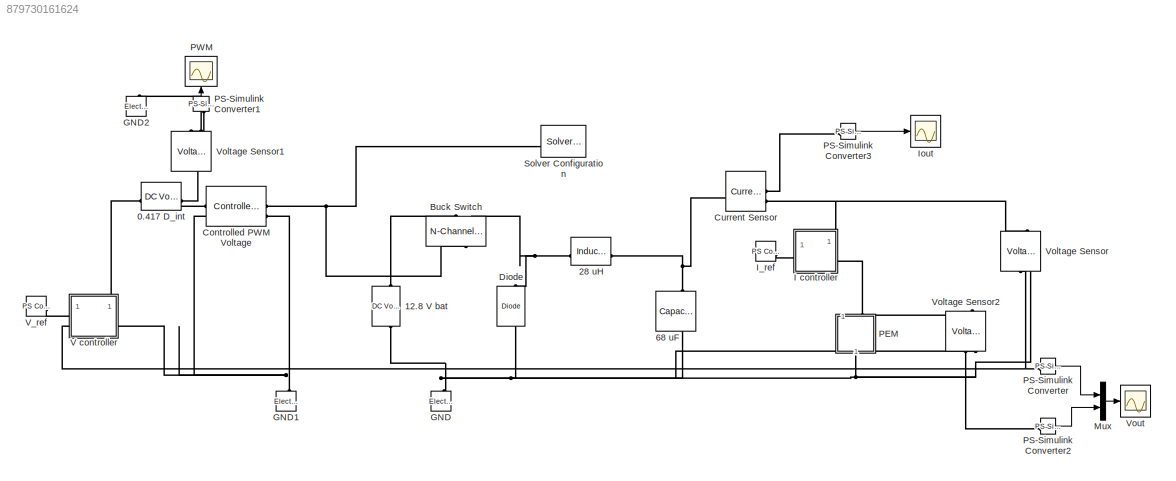
MODEL slx_879730161624
KIND model
CONFIG AbsTol = auto
CONFIG EnableMultiTasking = off
CONFIG FixedStep = auto
CONFIG MaxStep = auto
CONFIG MinStep = auto
CONFIG RelTol = 1e-3
CONFIG SampleTimeConstraint = Unconstrained
CONFIG SolverName = VariableStepAuto
CONFIG StartTime = 0.0
CONFIG StopTime = 2e-3
BLOCK [Reference] 0.417 D_int  REF=fl_lib/Electrical/Electrical Sources/DC Voltage Source
  SourceBlock = fl_lib/Electrical/Electrical Sources/DC Voltage Source
  SourceType = DC Voltage Source
BLOCK [Reference] 12.8 V bat  REF=fl_lib/Electrical/Electrical Sources/DC Voltage Source
  NameLocation = right
  SourceBlock = fl_lib/Electrical/Electrical Sources/DC Voltage Source
  SourceType = DC Voltage Source
BLOCK [Reference] 28 uH  REF=ee_lib/Passive/Inductor
  SourceBlock = ee_lib/Passive/Inductor
  SourceType = Inductor
BLOCK [Reference] 68 uF  REF=ee_lib/Passive/Capacitor
  NameLocation = left
  SourceBlock = ee_lib/Passive/Capacitor
  SourceType = Capacitor
BLOCK [Reference] Buck Switch  REF=ee_lib/Semiconductors &
Converters/N-Channel MOSFET
  NameLocation = right
  SourceBlock = ee_lib/Semiconductors &\nConverters/N-Channel MOSFET
  SourceType = N-Channel MOSFET
BLOCK [Reference] Controlled PWM Voltage  REF=ee_lib/Integrated Circuits/Controlled PWM
Voltage
  SourceBlock = ee_lib/Integrated Circuits/Controlled PWM\nVoltage
  SourceType = Controlled PWM\nVoltage
BLOCK [Reference] Current Sensor  REF=fl_lib/Electrical/Electrical Sensors/Current Sensor
  SourceBlock = fl_lib/Electrical/Electrical Sensors/Current Sensor
  SourceType = Current Sensor
BLOCK [Reference] Diode  REF=ee_lib/Semiconductors &
Converters/Diode
  NameLocation = right
  SourceBlock = ee_lib/Semiconductors &\nConverters/Diode
  SourceType = Diode
BLOCK [Reference] GND  REF=fl_lib/Electrical/Electrical Elements/Electrical Reference
  NameLocation = right
  SourceBlock = fl_lib/Electrical/Electrical Elements/Electrical Reference
  SourceType = Electrical Reference
BLOCK [Reference] GND1  REF=fl_lib/Electrical/Electrical Elements/Electrical Reference
  NameLocation = right
  SourceBlock = fl_lib/Electrical/Electrical Elements/Electrical Reference
  SourceType = Electrical Reference
BLOCK [Reference] GND2  REF=fl_lib/Electrical/Electrical Elements/Electrical Reference
  NameLocation = right
  SourceBlock = fl_lib/Electrical/Electrical Elements/Electrical Reference
  SourceType = Electrical Reference
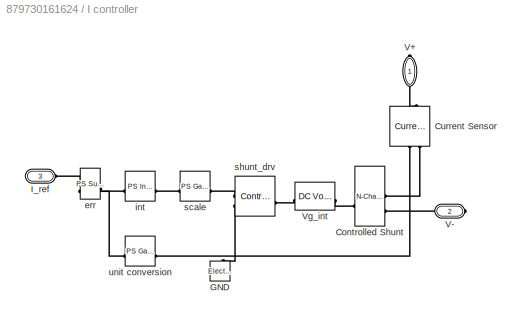
BLOCK [SubSystem] I controller
BLOCK [Reference] I controller/Controlled Shunt  REF=ee_lib/Semiconductors &
Converters/N-Channel MOSFET
  SourceBlock = ee_lib/Semiconductors &\nConverters/N-Channel MOSFET
  SourceType = N-Channel MOSFET
BLOCK [Reference] I controller/Current Sensor  REF=fl_lib/Electrical/Electrical Sensors/Current Sensor
  NameLocation = left
  SourceBlock = fl_lib/Electrical/Electrical Sensors/Current Sensor
  SourceType = Current Sensor
BLOCK [Reference] I controller/GND  REF=fl_lib/Electrical/Electrical Elements/Electrical Reference
  NameLocation = right
  SourceBlock = fl_lib/Electrical/Electrical Elements/Electrical Reference
  SourceType = Electrical Reference
BLOCK [PMIOPort] I controller/I_ref
  NameLocation = top
  Port = 3
  Side = Left
BLOCK [PMIOPort] I controller/V+
  NameLocation = right
  Side = Right
BLOCK [PMIOPort] I controller/V-
  Port = 2
  Side = Right
BLOCK [Reference] I controller/Vg_int  REF=fl_lib/Electrical/Electrical Sources/DC Voltage Source
  SourceBlock = fl_lib/Electrical/Electrical Sources/DC Voltage Source
  SourceType = DC Voltage Source
BLOCK [Reference] I controller/err  REF=fl_lib/Physical Signals/Functions/PS Subtract
  SourceBlock = fl_lib/Physical Signals/Functions/PS Subtract
  SourceType = PS Subtract
BLOCK [Reference] I controller/int  REF=fl_lib/Physical Signals/Linear Operators/PS Integrator
  SourceBlock = fl_lib/Physical Signals/Linear Operators/PS Integrator
  SourceType = PS Integrator
BLOCK [Reference] I controller/scale  REF=fl_lib/Physical Signals/Functions/PS Gain
  SourceBlock = fl_lib/Physical Signals/Functions/PS Gain
  SourceType = PS Gain
BLOCK [Reference] I controller/shunt_drv  REF=fl_lib/Electrical/Electrical Sources/Controlled Voltage
Source
  SourceBlock = fl_lib/Electrical/Electrical Sources/Controlled Voltage\nSource
  SourceType = Controlled Voltage\nSource
BLOCK [Reference] I controller/unit conversion  REF=fl_lib/Physical Signals/Functions/PS Gain
  NameLocation = top
  SourceBlock = fl_lib/Physical Signals/Functions/PS Gain
  SourceType = PS Gain
BLOCK [Reference] I_ref  REF=fl_lib/Physical Signals/Sources/PS Constant
  SourceBlock = fl_lib/Physical Signals/Sources/PS Constant
  SourceType = PS Constant
BLOCK [Scope] Iout
  Floating = off
  NumInputPorts = 1
  ScopeSpecificationString = Simulink.scopes.TimeScopeBlockCfg('CurrentConfiguration', extmgr.ConfigurationSet(extmgr.Configuration('Core','General UI',true),extmgr.Configuration('Core','Source UI',true),extmgr.Configuration('Sources','WiredSimulink',true,'DataLoggingVariableName','ScopeData2'),extmgr.Configuration('Visuals','Time Domain',true,'SerializedDisplays',{struct('MinYLimReal','-0.57105','MaxYLimReal','6.29261','YLab...<+1596ch>
BLOCK [Mux] Mux
  DisplayOption = bar
  Inputs = 2
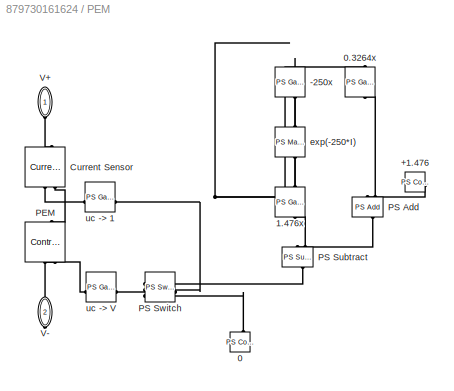
BLOCK [SubSystem] PEM
  NameLocation = left
BLOCK [Reference] PEM/+1.476  REF=fl_lib/Physical Signals/Sources/PS Constant
  NameLocation = top
  SourceBlock = fl_lib/Physical Signals/Sources/PS Constant
  SourceType = PS Constant
BLOCK [Reference] PEM/-250x  REF=fl_lib/Physical Signals/Functions/PS Gain
  NameLocation = left
  SourceBlock = fl_lib/Physical Signals/Functions/PS Gain
  SourceType = PS Gain
BLOCK [Reference] PEM/0  REF=fl_lib/Physical Signals/Sources/PS Constant
  NameLocation = right
  SourceBlock = fl_lib/Physical Signals/Sources/PS Constant
  SourceType = PS Constant
BLOCK [Reference] PEM/0.3264x  REF=fl_lib/Physical Signals/Functions/PS Gain
  NameLocation = left
  SourceBlock = fl_lib/Physical Signals/Functions/PS Gain
  SourceType = PS Gain
BLOCK [Reference] PEM/1.476x  REF=fl_lib/Physical Signals/Functions/PS Gain
  NameLocation = left
  SourceBlock = fl_lib/Physical Signals/Functions/PS Gain
  SourceType = PS Gain
BLOCK [Reference] PEM/Current Sensor  REF=fl_lib/Electrical/Electrical Sensors/Current Sensor
  NameLocation = left
  SourceBlock = fl_lib/Electrical/Electrical Sensors/Current Sensor
  SourceType = Current Sensor
BLOCK [Reference] PEM/PEM  REF=fl_lib/Electrical/Electrical Sources/Controlled Voltage
Source
  NameLocation = right
  SourceBlock = fl_lib/Electrical/Electrical Sources/Controlled Voltage\nSource
  SourceType = Controlled Voltage\nSource
BLOCK [Reference] PEM/PS Add  REF=fl_lib/Physical Signals/Functions/PS Add
  NameLocation = left
  SourceBlock = fl_lib/Physical Signals/Functions/PS Add
  SourceType = PS Add
BLOCK [Reference] PEM/PS Subtract  REF=fl_lib/Physical Signals/Functions/PS Subtract
  NameLocation = left
  SourceBlock = fl_lib/Physical Signals/Functions/PS Subtract
  SourceType = PS Subtract
BLOCK [Reference] PEM/PS Switch  REF=fl_lib/Physical Signals/Nonlinear Operators/PS Switch
  NameLocation = top
  SourceBlock = fl_lib/Physical Signals/Nonlinear Operators/PS Switch
  SourceType = PS Switch
BLOCK [PMIOPort] PEM/V+
  NameLocation = left
  Side = Left
BLOCK [PMIOPort] PEM/V-
  NameLocation = left
  Port = 2
  Side = Right
BLOCK [Reference] PEM/exp(-250*I)  REF=fl_lib/Physical Signals/Functions/PS Math Function
  NameLocation = left
  SourceBlock = fl_lib/Physical Signals/Functions/PS Math Function
  SourceType = PS Math Function
BLOCK [Reference] PEM/uc -> 1  REF=fl_lib/Physical Signals/Functions/PS Gain
  SourceBlock = fl_lib/Physical Signals/Functions/PS Gain
  SourceType = PS Gain
BLOCK [Reference] PEM/uc -> V  REF=fl_lib/Physical Signals/Functions/PS Gain
  NameLocation = top
  SourceBlock = fl_lib/Physical Signals/Functions/PS Gain
  SourceType = PS Gain
BLOCK [Reference] PS-Simulink Converter  REF=nesl_utility/PS-Simulink
Converter
  SourceBlock = nesl_utility/PS-Simulink\nConverter
  SourceType = PS-Simulink\nConverter
BLOCK [Reference] PS-Simulink Converter1  REF=nesl_utility/PS-Simulink
Converter
  NameLocation = right
  SourceBlock = nesl_utility/PS-Simulink\nConverter
  SourceType = PS-Simulink\nConverter
BLOCK [Reference] PS-Simulink Converter2  REF=nesl_utility/PS-Simulink
Converter
  SourceBlock = nesl_utility/PS-Simulink\nConverter
  SourceType = PS-Simulink\nConverter
BLOCK [Reference] PS-Simulink Converter3  REF=nesl_utility/PS-Simulink
Converter
  SourceBlock = nesl_utility/PS-Simulink\nConverter
  SourceType = PS-Simulink\nConverter
BLOCK [Scope] PWM
  Floating = off
  NameLocation = right
  NumInputPorts = 1
  ScopeSpecificationString = Simulink.scopes.TimeScopeBlockCfg('CurrentConfiguration', extmgr.ConfigurationSet(extmgr.Configuration('Core','General UI',true),extmgr.Configuration('Core','Source UI',true),extmgr.Configuration('Sources','WiredSimulink',true,'DataLoggingVariableName','ScopeData2'),extmgr.Configuration('Visuals','Time Domain',true,'SerializedDisplays',{struct('MinYLimReal','0.40264','MaxYLimReal','0.54621','YLabe...<+1568ch>
BLOCK [Reference] Solver Configuration  REF=nesl_utility/Solver
Configuration
  NameLocation = top
  SourceBlock = nesl_utility/Solver\nConfiguration
  SourceType = Solver\nConfiguration
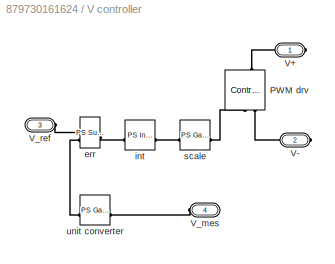
BLOCK [SubSystem] V controller
BLOCK [Reference] V controller/PWM drv  REF=fl_lib/Electrical/Electrical Sources/Controlled Voltage
Source
  NameLocation = right
  SourceBlock = fl_lib/Electrical/Electrical Sources/Controlled Voltage\nSource
  SourceType = Controlled Voltage\nSource
BLOCK [PMIOPort] V controller/V+
  Side = Right
BLOCK [PMIOPort] V controller/V-
  Port = 2
  Side = Right
BLOCK [PMIOPort] V controller/V_mes
  Port = 4
  Side = Left
BLOCK [PMIOPort] V controller/V_ref
  NameLocation = top
  Port = 3
  Side = Left
BLOCK [Reference] V controller/err  REF=fl_lib/Physical Signals/Functions/PS Subtract
  SourceBlock = fl_lib/Physical Signals/Functions/PS Subtract
  SourceType = PS Subtract
BLOCK [Reference] V controller/int  REF=fl_lib/Physical Signals/Linear Operators/PS Integrator
  SourceBlock = fl_lib/Physical Signals/Linear Operators/PS Integrator
  SourceType = PS Integrator
BLOCK [Reference] V controller/scale  REF=fl_lib/Physical Signals/Functions/PS Gain
  SourceBlock = fl_lib/Physical Signals/Functions/PS Gain
  SourceType = PS Gain
BLOCK [Reference] V controller/unit converter  REF=fl_lib/Physical Signals/Functions/PS Gain
  NameLocation = top
  SourceBlock = fl_lib/Physical Signals/Functions/PS Gain
  SourceType = PS Gain
BLOCK [Reference] V_ref  REF=fl_lib/Physical Signals/Sources/PS Constant
  SourceBlock = fl_lib/Physical Signals/Sources/PS Constant
  SourceType = PS Constant
BLOCK [Reference] Voltage Sensor  REF=fl_lib/Electrical/Electrical Sensors/Voltage Sensor
  NameLocation = right
  SourceBlock = fl_lib/Electrical/Electrical Sensors/Voltage Sensor
  SourceType = Voltage Sensor
BLOCK [Reference] Voltage Sensor1  REF=fl_lib/Electrical/Electrical Sensors/Voltage Sensor
  NameLocation = left
  SourceBlock = fl_lib/Electrical/Electrical Sensors/Voltage Sensor
  SourceType = Voltage Sensor
BLOCK [Reference] Voltage Sensor2  REF=fl_lib/Electrical/Electrical Sensors/Voltage Sensor
  NameLocation = right
  SourceBlock = fl_lib/Electrical/Electrical Sensors/Voltage Sensor
  SourceType = Voltage Sensor
BLOCK [Scope] Vout
  Floating = off
  NumInputPorts = 1
  ScopeSpecificationString = Simulink.scopes.TimeScopeBlockCfg('CurrentConfiguration', extmgr.ConfigurationSet(extmgr.Configuration('Core','General UI',true),extmgr.Configuration('Core','Source UI',true),extmgr.Configuration('Sources','WiredSimulink',true),extmgr.Configuration('Visuals','Time Domain',true,'SerializedDisplays',{struct('MinYLimReal','-0.66115','MaxYLimReal','5.95039','YLabelReal','','MinYLimMag','0.00000','MaxY...<+1581ch>
LINE Mux:1 -> Vout:1
LINE PS-Simulink Converter1:1 -> PWM:1
LINE PS-Simulink Converter2:1 -> Mux:2
LINE PS-Simulink Converter3:1 -> Iout:1
LINE PS-Simulink Converter:1 -> Mux:1
PNET net1: 0.417 D_int:LConn1 -- Controlled PWM Voltage:LConn1 -- Voltage Sensor1:LConn1
PLINE 0.417 D_int:RConn1 -- V controller:RConn1
PLINE 12.8 V bat:LConn1 -- Buck Switch:RConn1
PNET net2: 12.8 V bat:RConn1 -- 68 uF:RConn1 -- Diode:LConn1 -- GND:LConn1 -- PEM:RConn1 -- Voltage Sensor2:RConn2 -- Voltage Sensor:RConn2
PNET net3: 28 uH:LConn1 -- Buck Switch:RConn2 -- Diode:RConn1
PNET net4: 28 uH:RConn1 -- 68 uF:LConn1 -- Current Sensor:LConn1
PNET net5: Buck Switch:LConn1 -- Controlled PWM Voltage:RConn1 -- Solver Configuration:RConn1
PNET net6: Controlled PWM Voltage:LConn2 -- Controlled PWM Voltage:RConn2 -- GND1:LConn1 -- V controller:RConn2
PLINE Current Sensor:RConn1 -- PS-Simulink Converter3:LConn1
PNET net7: Current Sensor:RConn2 -- I controller:RConn1 -- Voltage Sensor:LConn1
PLINE GND2:LConn1 -- Voltage Sensor1:RConn2
PLINE I controller/Controlled Shunt:LConn1 -- I controller/Vg_int:LConn1
PLINE I controller/Controlled Shunt:RConn1 -- I controller/Current Sensor:RConn2
PLINE I controller/Controlled Shunt:RConn2 -- I controller/V-:RConn1
PLINE I controller/Current Sensor:LConn1 -- I controller/V+:RConn1
PLINE I controller/Current Sensor:RConn1 -- I controller/unit conversion:LConn1
PLINE I controller/GND:LConn1 -- I controller/shunt_drv:RConn2
PLINE I controller/I_ref:RConn1 -- I controller/err:LConn1
PLINE I controller/Vg_int:RConn1 -- I controller/shunt_drv:LConn1
PLINE I controller/err:LConn2 -- I controller/unit conversion:RConn1
PLINE I controller/err:RConn1 -- I controller/int:LConn1
PLINE I controller/int:RConn1 -- I controller/scale:LConn1
PLINE I controller/scale:RConn1 -- I controller/shunt_drv:RConn1
PLINE I controller:LConn1 -- I_ref:RConn1
PNET net8: I controller:RConn2 -- PEM:LConn1 -- Voltage Sensor2:LConn1
PLINE PEM/+1.476:RConn1 -- PEM/PS Add:LConn1
PNET net9: PEM/-250x:LConn1 -- PEM/0.3264x:LConn1 -- PEM/PS Switch:LConn2 -- PEM/uc -> 1:RConn1
PLINE PEM/-250x:RConn1 -- PEM/exp(-250*I):LConn1
PLINE PEM/0.3264x:RConn1 -- PEM/PS Add:LConn2
PLINE PEM/0:RConn1 -- PEM/PS Switch:LConn3
PLINE PEM/1.476x:LConn1 -- PEM/exp(-250*I):RConn1
PLINE PEM/1.476x:RConn1 -- PEM/PS Subtract:LConn2
PLINE PEM/Current Sensor:LConn1 -- PEM/V+:RConn1
PLINE PEM/Current Sensor:RConn1 -- PEM/uc -> 1:LConn1
PLINE PEM/Current Sensor:RConn2 -- PEM/PEM:LConn1
PLINE PEM/PEM:RConn1 -- PEM/uc -> V:RConn1
PLINE PEM/PEM:RConn2 -- PEM/V-:RConn1
PLINE PEM/PS Add:RConn1 -- PEM/PS Subtract:LConn1
PLINE PEM/PS Subtract:RConn1 -- PEM/PS Switch:LConn1
PLINE PEM/PS Switch:RConn1 -- PEM/uc -> V:LConn1
PLINE PS-Simulink Converter1:LConn1 -- Voltage Sensor1:RConn1
PLINE PS-Simulink Converter2:LConn1 -- Voltage Sensor2:RConn1
PNET net10: PS-Simulink Converter:LConn1 -- V controller:LConn2 -- Voltage Sensor:RConn1
PLINE V controller/PWM drv:LConn1 -- V controller/V+:RConn1
PLINE V controller/PWM drv:RConn1 -- V controller/scale:RConn1
PLINE V controller/PWM drv:RConn2 -- V controller/V-:RConn1
PLINE V controller/V_mes:RConn1 -- V controller/unit converter:LConn1
PLINE V controller/V_ref:RConn1 -- V controller/err:LConn1
PLINE V controller/err:LConn2 -- V controller/unit converter:RConn1
PLINE V controller/err:RConn1 -- V controller/int:LConn1
PLINE V controller/int:RConn1 -- V controller/scale:LConn1
PLINE V controller:LConn1 -- V_ref:RConn1
note: PNET lines group multi-terminal physical nets as a canonical sorted terminal list (undirected conserving connections); 2-terminal nets keep the pairwise PLINE form
